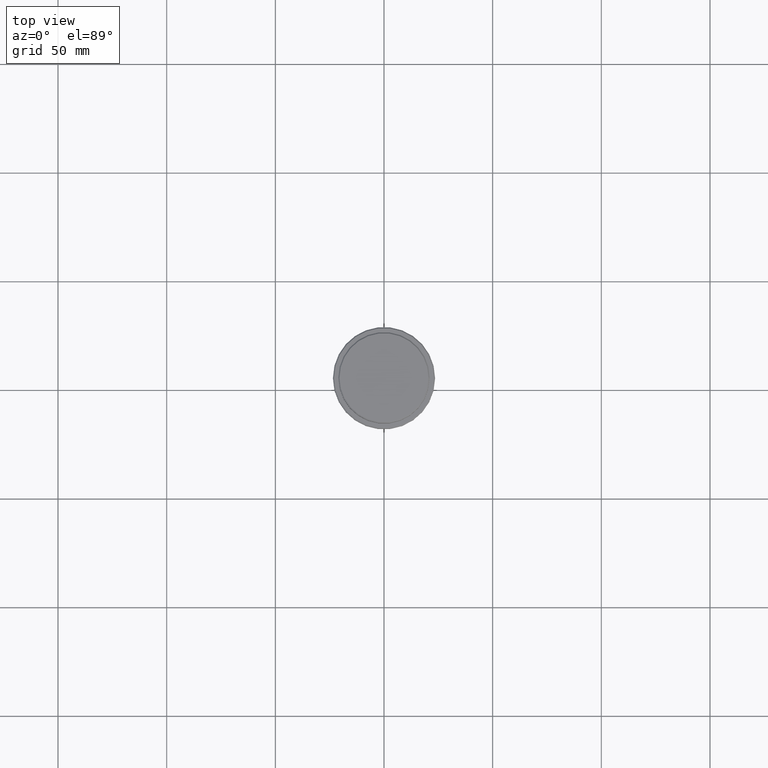
[diagram: clean part render]
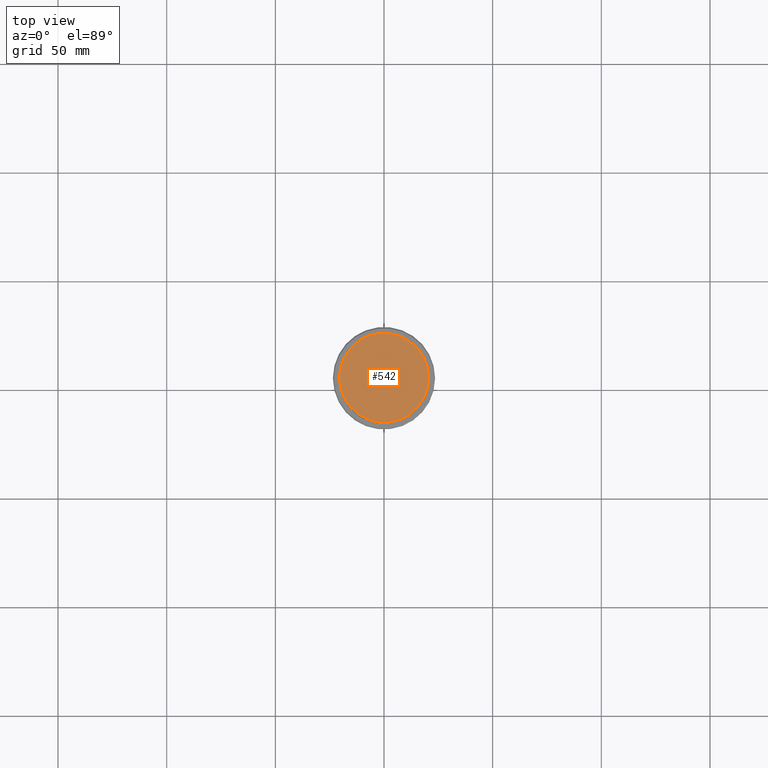
[diagram: same view with one face highlighted and labeled with its STEP entity id]
A machine part, top view. The second image highlights one B-rep face of the part: STEP entity #542.
In plain terms, the highlighted planar face has unit normal (0, -0, 1).
Its self-contained STEP definition (entity closure, byte-faithful):
#52 = DIRECTION ( 'NONE',  ( -0.000000000000000000, -0.000000000000000000, 1.000000000000000000 ) ) ;
#61 = ORIENTED_EDGE ( 'NONE', *, *, #587, .T. ) ;
#171 = CARTESIAN_POINT ( 'NONE',  ( 20.49999999999998934, 2.541142108230757085E-15, 0.000000000000000000 ) ) ;
#214 = PLANE ( 'NONE',  #714 ) ;
#327 = DIRECTION ( 'NONE',  ( 0.000000000000000000, -0.000000000000000000, 1.000000000000000000 ) ) ;
#376 = CARTESIAN_POINT ( 'NONE',  ( 0.000000000000000000, 0.000000000000000000, 0.000000000000000000 ) ) ;
#458 = DIRECTION ( 'NONE',  ( -0.000000000000000000, -0.000000000000000000, 1.000000000000000000 ) ) ;
#508 = AXIS2_PLACEMENT_3D ( 'NONE', #376, #458, #820 ) ;
#542 = ADVANCED_FACE ( 'NONE', ( #1305 ), #214, .T. ) ;
#569 = AXIS2_PLACEMENT_3D ( 'NONE', #1258, #52, #575 ) ;
#575 = DIRECTION ( 'NONE',  ( 1.000000000000000000, 0.000000000000000000, 0.000000000000000000 ) ) ;
#587 = EDGE_CURVE ( 'NONE', #1392, #599, #1016, .T. ) ;
#599 = VERTEX_POINT ( 'NONE', #931 ) ;
#635 = EDGE_LOOP ( 'NONE', ( #1399, #61 ) ) ;
#652 = DIRECTION ( 'NONE',  ( 1.000000000000000000, 0.000000000000000000, 0.000000000000000000 ) ) ;
#714 = AXIS2_PLACEMENT_3D ( 'NONE', #874, #327, #652 ) ;
#820 = DIRECTION ( 'NONE',  ( 1.000000000000000000, 0.000000000000000000, 0.000000000000000000 ) ) ;
#874 = CARTESIAN_POINT ( 'NONE',  ( 0.000000000000000000, 0.000000000000000000, 0.000000000000000000 ) ) ;
#931 = CARTESIAN_POINT ( 'NONE',  ( -20.49999999999998934, 0.000000000000000000, 0.000000000000000000 ) ) ;
#1016 = CIRCLE ( 'NONE', #569, 20.49999999999998934 ) ;
#1042 = EDGE_CURVE ( 'NONE', #599, #1392, #1273, .T. ) ;
#1258 = CARTESIAN_POINT ( 'NONE',  ( 0.000000000000000000, 0.000000000000000000, 0.000000000000000000 ) ) ;
#1273 = CIRCLE ( 'NONE', #508, 20.49999999999998934 ) ;
#1305 = FACE_OUTER_BOUND ( 'NONE', #635, .T. ) ;
#1392 = VERTEX_POINT ( 'NONE', #171 ) ;
#1399 = ORIENTED_EDGE ( 'NONE', *, *, #1042, .T. ) ;